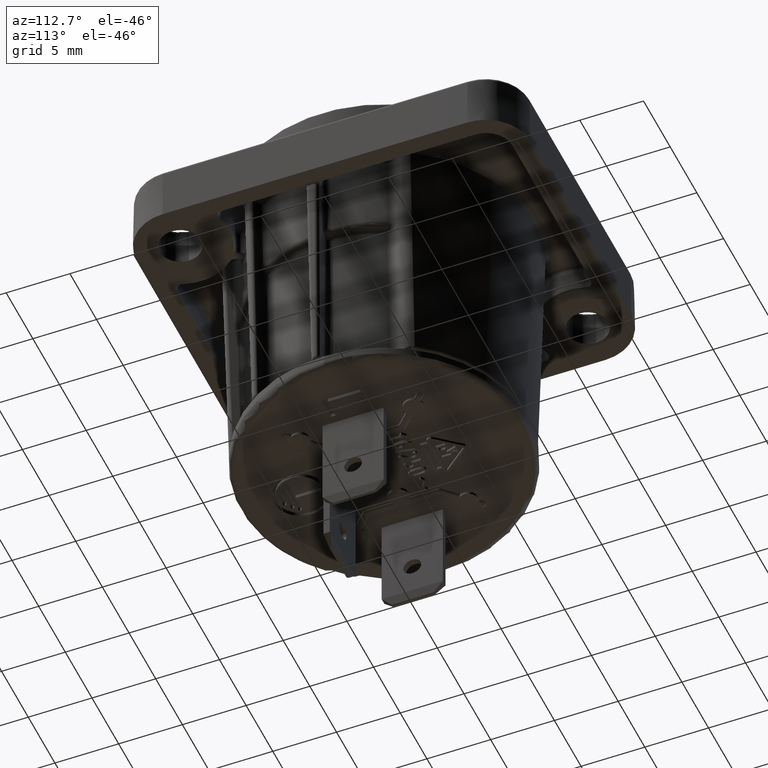
[diagram: clean part render]
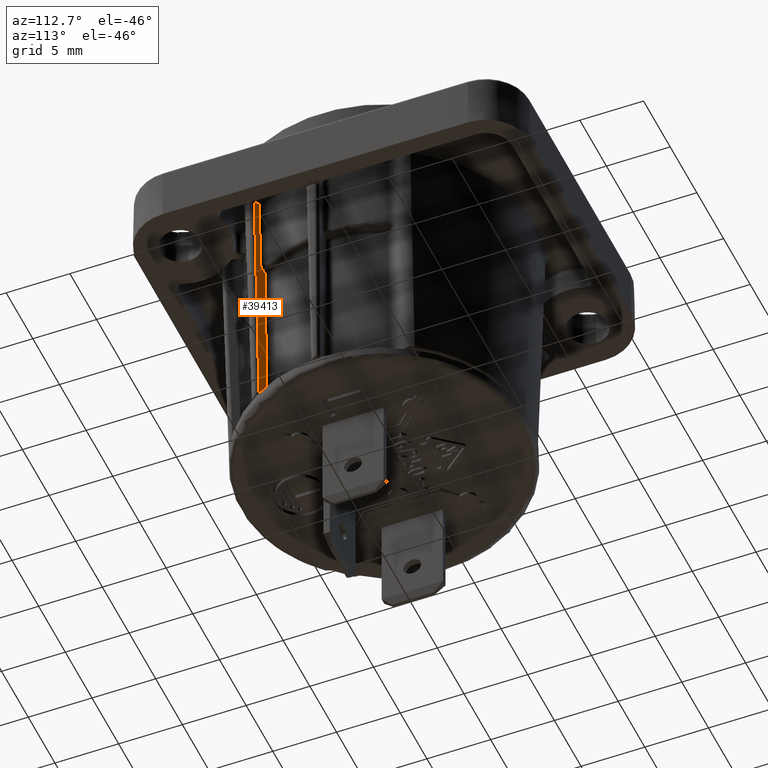
[diagram: same view with one face highlighted and labeled with its STEP entity id]
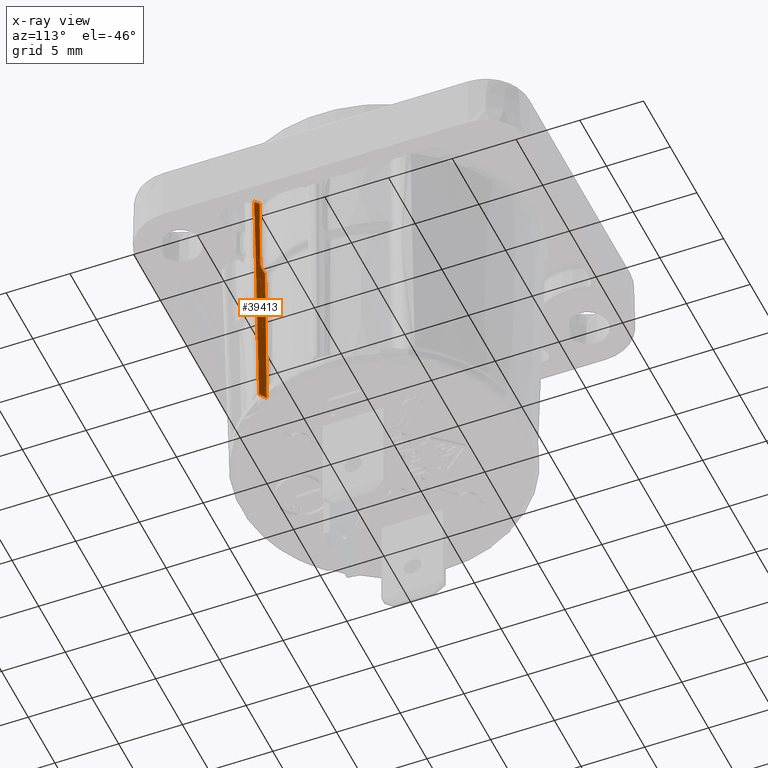
[diagram: x-ray of the same camera — body ghosted, the highlighted face saturated]
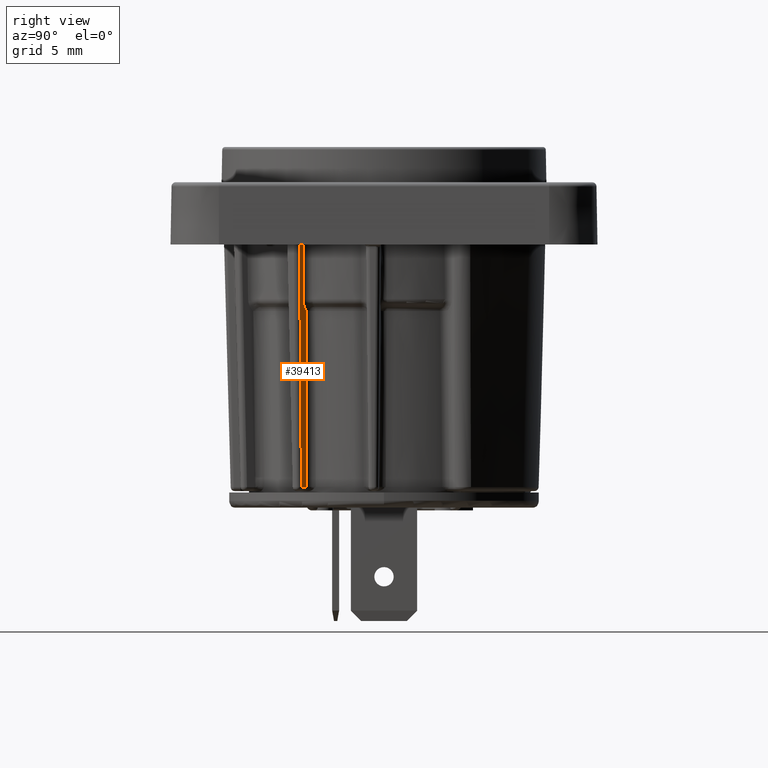
[diagram: same view with one face highlighted and labeled with its STEP entity id]
A machine part, auxiliary view. The second image highlights one B-rep face of the part: STEP entity #39413.
The next image is the same camera in x-ray: the body ghosted, the highlighted face saturated — about 0% of this face is hidden behind the body in this view.
A second angle (right view) of the same face is appended — the face is thin or edge-on in the first view.
In plain terms, the highlighted planar face has unit normal (-0.5736, -0.8191, 0.0087).
Its self-contained STEP definition (entity closure, byte-faithful):
#13547=DIRECTION('',(-8.191520442890E-1,5.735764363510E-1,-4.627208359663E-13));
#13548=VECTOR('',#13547,6.602974247719E-1);
#13549=CARTESIAN_POINT('',(9.152637279076E0,-5.975366421500E0,
-1.755261796065E1));
#13550=LINE('',#13549,#13548);
#13551=CARTESIAN_POINT('',(9.670930566075E0,-6.128872179808E0,
2.103490614199E0));
#13552=CARTESIAN_POINT('',(9.631608358360E0,-6.117255889104E0,
6.093940143917E-1));
#13553=CARTESIAN_POINT('',(9.551447834004E0,-6.093562233193E0,
-2.435166973298E0));
#13554=CARTESIAN_POINT('',(9.428189566345E0,-6.057086498677E0,
-7.112545661502E0));
#13555=CARTESIAN_POINT('',(9.297267389029E0,-6.018293841423E0,
-1.207615831721E1));
#13556=CARTESIAN_POINT('',(9.202022090742E0,-5.990032260489E0,
-1.568340065531E1));
#13557=CARTESIAN_POINT('',(9.152637279076E0,-5.975366421500E0,
-1.755261796065E1));
#13559=DIRECTION('',(-8.191520442890E-1,5.735764363510E-1,0.E0));
#13560=VECTOR('',#13559,4.349334709344E-1);
#13561=CARTESIAN_POINT('',(9.670930566075E0,-6.128872179808E0,
2.103490614199E0));
#13562=LINE('',#13561,#13560);
#13563=CARTESIAN_POINT('',(9.314653924230E0,-5.879404589500E0,
2.103490614199E0));
#13564=CARTESIAN_POINT('',(9.314002887676E0,-5.878948728797E0,
2.103490614189E0));
#13565=CARTESIAN_POINT('',(9.312701179798E0,-5.878037463512E0,
2.103471805143E0));
#13566=CARTESIAN_POINT('',(9.310749102706E0,-5.876671506032E0,
2.103387174542E0));
#13567=CARTESIAN_POINT('',(9.309449263416E0,-5.875762349968E0,
2.103293195789E0));
#13568=CARTESIAN_POINT('',(9.308799628593E0,-5.875308071515E0,
2.103236806374E0));
#13570=CARTESIAN_POINT('',(9.195109844206E0,-5.860435979788E0,
-3.973087289380E0));
#13571=CARTESIAN_POINT('',(9.204726925155E0,-5.861697451781E0,
-3.459410015349E0));
#13572=CARTESIAN_POINT('',(9.223776860480E0,-5.864194455928E0,
-2.441728966768E0));
#13573=CARTESIAN_POINT('',(9.251344110604E0,-5.867803041222E0,
-9.685835755293E-1));
#13574=CARTESIAN_POINT('',(9.279271490037E0,-5.871454014978E0,
5.242526251386E-1));
#13575=CARTESIAN_POINT('',(9.298838336566E0,-5.874008533949E0,
1.570509184037E0));
#13576=CARTESIAN_POINT('',(9.308799628593E0,-5.875308071515E0,
2.103236806374E0));
#13578=CARTESIAN_POINT('',(9.007165841368E0,-5.735388131678E0,
-4.588090414977E0));
#13579=CARTESIAN_POINT('',(9.020429266530E0,-5.744466225211E0,
-4.568468145066E0));
#13580=CARTESIAN_POINT('',(9.045255263711E0,-5.761425514328E0,
-4.528662018403E0));
#13581=CARTESIAN_POINT('',(9.077057919947E0,-5.783062134861E0,
-4.469354668284E0));
#13582=CARTESIAN_POINT('',(9.106083178810E0,-5.802709291027E0,
-4.405849901615E0));
#13583=CARTESIAN_POINT('',(9.131044010161E0,-5.819491293341E0,
-4.340542061648E0));
#13584=CARTESIAN_POINT('',(9.152257702589E0,-5.833621478465E0,
-4.272601992128E0));
#13585=CARTESIAN_POINT('',(9.169033671458E0,-5.844644873125E0,
-4.204712255439E0));
#13586=CARTESIAN_POINT('',(9.182489578615E0,-5.853291241365E0,
-4.131914226172E0));
#13587=CARTESIAN_POINT('',(9.191781966273E0,-5.858966095504E0,
-4.053840996006E0));
#13588=CARTESIAN_POINT('',(9.194599164722E0,-5.860368942947E0,
-4.000361089717E0));
#13589=CARTESIAN_POINT('',(9.195109844206E0,-5.860435979788E0,
-3.973087289380E0));
#13591=CARTESIAN_POINT('',(8.850248843970E0,-5.627986704923E0,
-4.820223401636E0));
#13592=CARTESIAN_POINT('',(8.867765569602E0,-5.639975997882E0,
-4.794311787900E0));
#13593=CARTESIAN_POINT('',(8.902744673991E0,-5.663917375195E0,
-4.742567922335E0));
#13594=CARTESIAN_POINT('',(8.955050325891E0,-5.699717840834E0,
-4.665190240093E0));
#13595=CARTESIAN_POINT('',(8.989812107864E0,-5.723510430030E0,
-4.613763891387E0));
#13596=CARTESIAN_POINT('',(9.007165841368E0,-5.735388131678E0,
-4.588090414977E0));
#13598=CARTESIAN_POINT('',(8.611753293736E0,-5.596635377668E0,
-1.755261796065E1));
#13599=CARTESIAN_POINT('',(8.629711691879E0,-5.599010545157E0,
-1.659524231288E1));
#13600=CARTESIAN_POINT('',(8.666449929803E0,-5.603862821675E0,
-1.463607027444E1));
#13601=CARTESIAN_POINT('',(8.723390690348E0,-5.611361834518E0,
-1.159751767445E1));
#13602=CARTESIAN_POINT('',(8.784041481241E0,-5.619325822214E0,
-8.358767142423E0));
#13603=CARTESIAN_POINT('',(8.827686883433E0,-5.625038672050E0,
-6.026397486069E0));
#13604=CARTESIAN_POINT('',(8.850248843970E0,-5.627986704923E0,
-4.820223401636E0));
#19143=VERTEX_POINT('',#13578);
#19144=VERTEX_POINT('',#13589);
#19146=VERTEX_POINT('',#13591);
#19263=VERTEX_POINT('',#13576);
#19265=VERTEX_POINT('',#13563);
#19266=CARTESIAN_POINT('',(9.670930566075E0,-6.128872179808E0,
2.103490614199E0));
#19267=VERTEX_POINT('',#19266);
#19435=CARTESIAN_POINT('',(9.152637279082E0,-5.975366421501E0,
-1.755261796034E1));
#19436=VERTEX_POINT('',#19435);
#19437=CARTESIAN_POINT('',(8.611753293736E0,-5.596635377668E0,
-1.755261796065E1));
#19438=VERTEX_POINT('',#19437);
#39392=CARTESIAN_POINT('',(1.081207858541E1,-6.923688397178E0,2.5E0));
#39393=DIRECTION('',(-5.735545963179E-1,-8.191208534892E-1,8.726535498374E-3));
#39394=DIRECTION('',(-8.191520442890E-1,5.735764363510E-1,0.E0));
#39395=AXIS2_PLACEMENT_3D('',#39392,#39393,#39394);
#39396=PLANE('',#39395);
#39397=ORIENTED_EDGE('',*,*,#39383,.F.);
#39399=ORIENTED_EDGE('',*,*,#39398,.F.);
#39401=ORIENTED_EDGE('',*,*,#39400,.T.);
#39403=ORIENTED_EDGE('',*,*,#39402,.T.);
#39405=ORIENTED_EDGE('',*,*,#39404,.F.);
#39407=ORIENTED_EDGE('',*,*,#39406,.F.);
#39409=ORIENTED_EDGE('',*,*,#39408,.F.);
#39410=ORIENTED_EDGE('',*,*,#39281,.F.);
#39411=EDGE_LOOP('',(#39397,#39399,#39401,#39403,#39405,#39407,#39409,#39410));
#39412=FACE_OUTER_BOUND('',#39411,.F.);
#39413=ADVANCED_FACE('',(#39412),#39396,.F.);
#13558=B_SPLINE_CURVE_WITH_KNOTS('',3,(#13551,#13552,#13553,#13554,#13555,
#13556,#13557),.UNSPECIFIED.,.F.,.F.,(4,1,1,1,4),(0.E0,2.5E-1,5.E-1,7.5E-1,
1.E0),.UNSPECIFIED.);
#13569=B_SPLINE_CURVE_WITH_KNOTS('',3,(#13563,#13564,#13565,#13566,#13567,
#13568),.UNSPECIFIED.,.F.,.F.,(4,1,1,4),(0.E0,3.333333333333E-1,
6.666666666667E-1,1.E0),.UNSPECIFIED.);
#13577=B_SPLINE_CURVE_WITH_KNOTS('',3,(#13570,#13571,#13572,#13573,#13574,
#13575,#13576),.UNSPECIFIED.,.F.,.F.,(4,1,1,1,4),(0.E0,2.5E-1,5.E-1,7.5E-1,
1.E0),.UNSPECIFIED.);
#13590=B_SPLINE_CURVE_WITH_KNOTS('',3,(#13578,#13579,#13580,#13581,#13582,
#13583,#13584,#13585,#13586,#13587,#13588,#13589),.UNSPECIFIED.,.F.,.F.,(4,1,1,
1,1,1,1,1,1,4),(0.E0,1.111111111111E-1,2.222222222222E-1,3.333333333333E-1,
4.444444444444E-1,5.555555555556E-1,6.666666666667E-1,7.777777777778E-1,
8.888888888889E-1,1.E0),.UNSPECIFIED.);
#13597=B_SPLINE_CURVE_WITH_KNOTS('',3,(#13591,#13592,#13593,#13594,#13595,
#13596),.UNSPECIFIED.,.F.,.F.,(4,1,1,4),(0.E0,3.333333333333E-1,
6.666666666667E-1,1.E0),.UNSPECIFIED.);
#13605=B_SPLINE_CURVE_WITH_KNOTS('',3,(#13598,#13599,#13600,#13601,#13602,
#13603,#13604),.UNSPECIFIED.,.F.,.F.,(4,1,1,1,4),(0.E0,2.5E-1,5.E-1,7.5E-1,
1.E0),.UNSPECIFIED.);
#39281=EDGE_CURVE('',#19438,#19146,#13605,.T.);
#39383=EDGE_CURVE('',#19436,#19438,#13550,.T.);
#39398=EDGE_CURVE('',#19267,#19436,#13558,.T.);
#39400=EDGE_CURVE('',#19267,#19265,#13562,.T.);
#39402=EDGE_CURVE('',#19265,#19263,#13569,.T.);
#39404=EDGE_CURVE('',#19144,#19263,#13577,.T.);
#39406=EDGE_CURVE('',#19143,#19144,#13590,.T.);
#39408=EDGE_CURVE('',#19146,#19143,#13597,.T.);